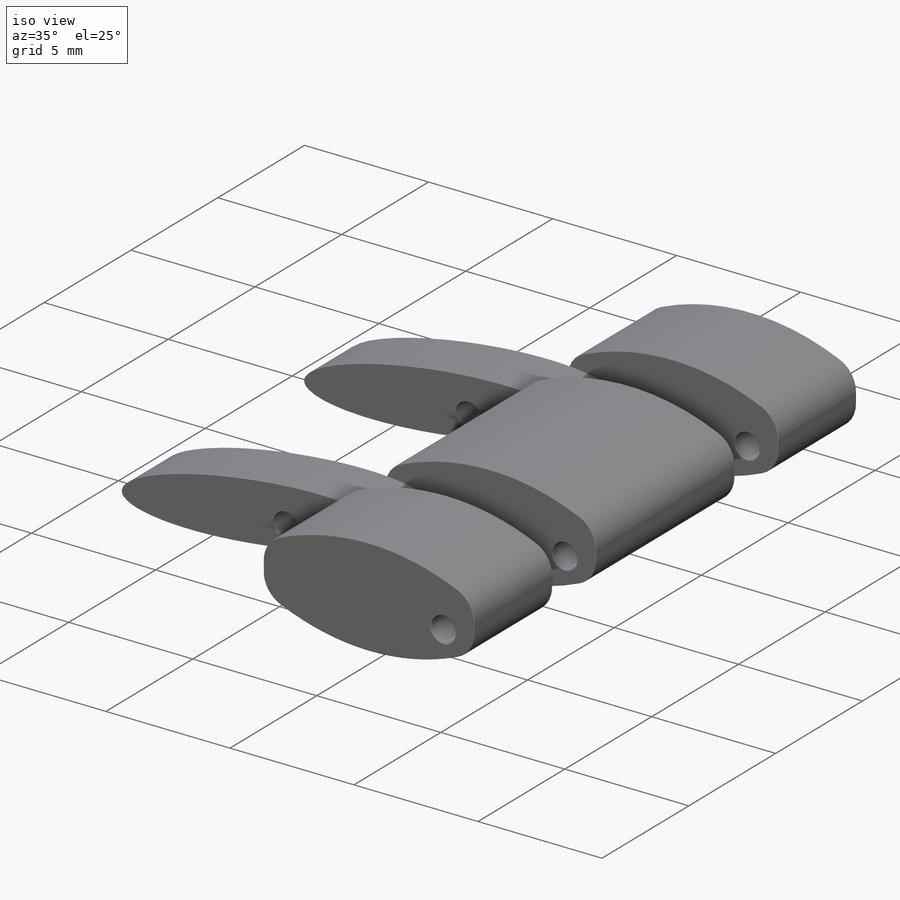
[diagram: iso view]
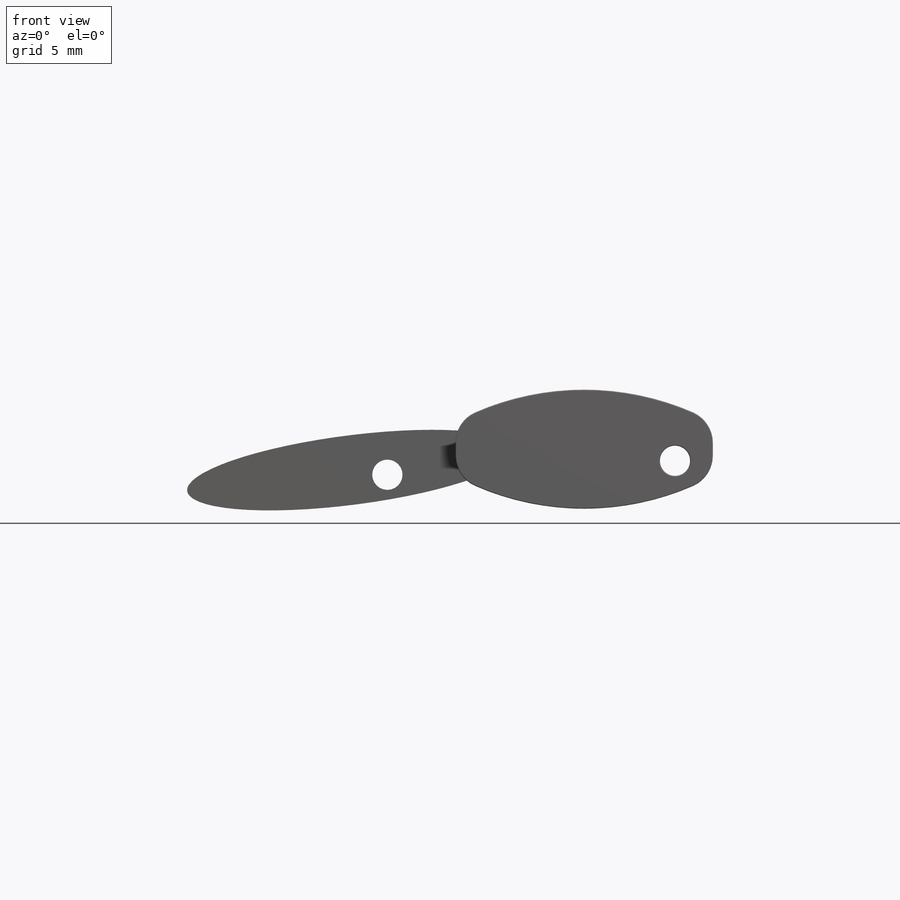
[diagram: front view]
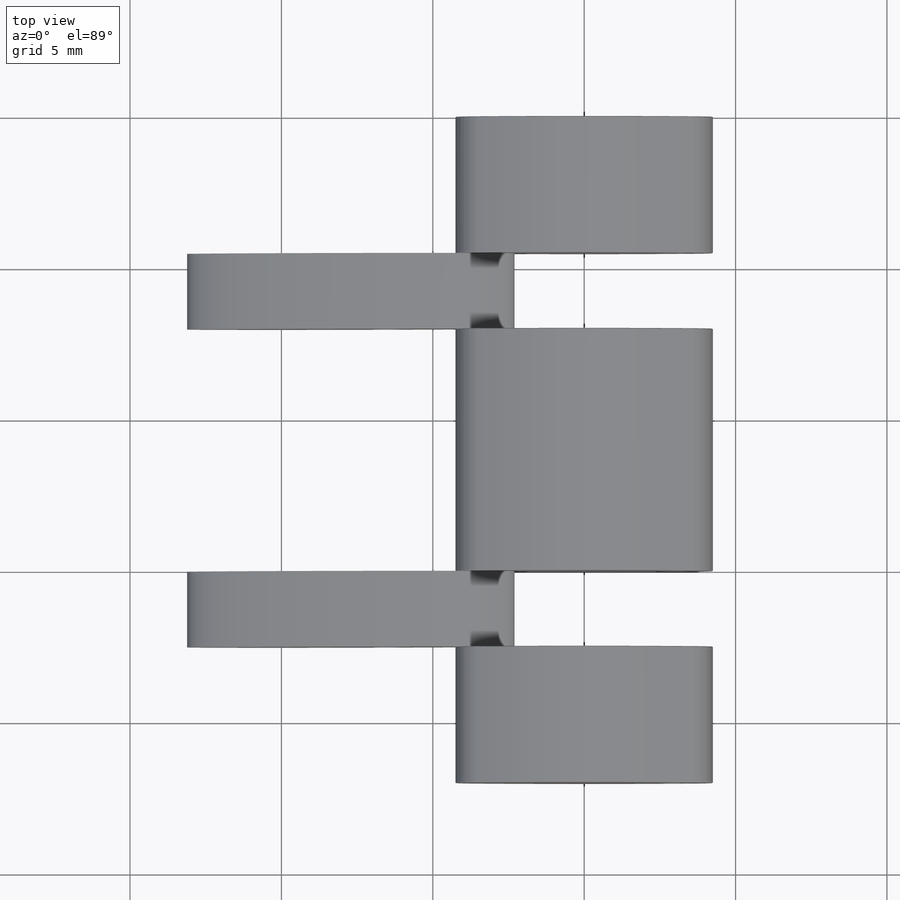
[diagram: top view]
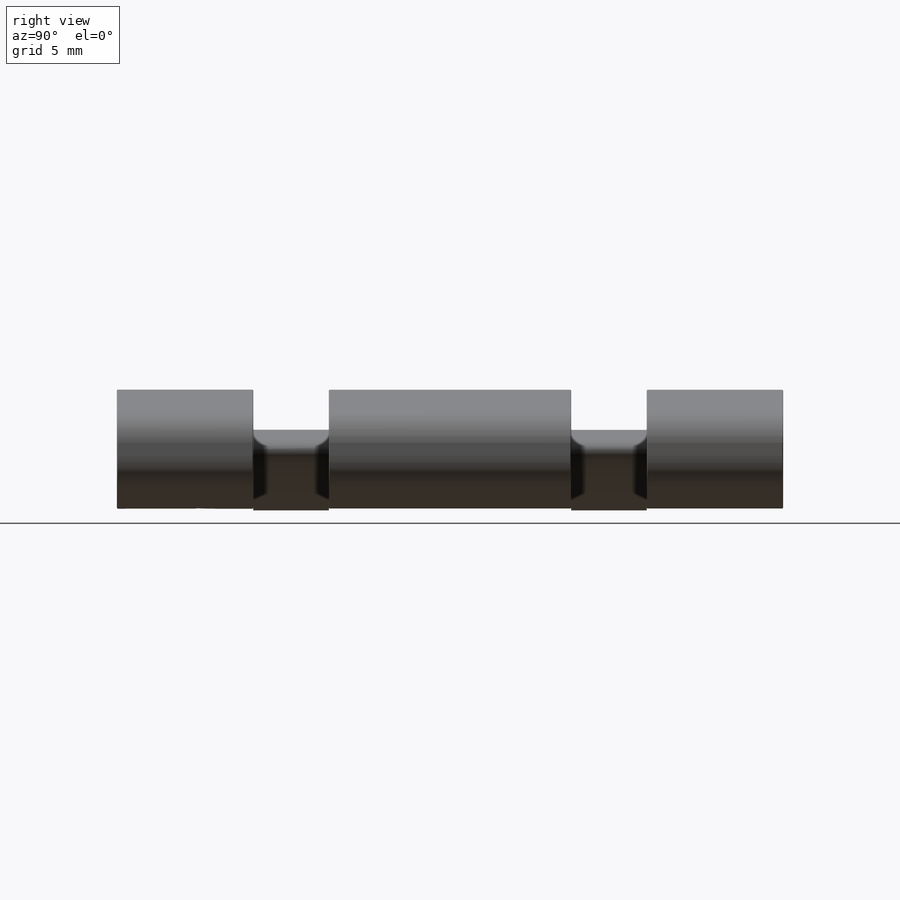
[diagram: right view]
SOLIDWORKS PART (.sldprt)
format: sldprt  version: not decoded by parser v0  size: 569,856 bytes
history: native  units: mm
features: sketch x8, fillet x7, cut_extrude x5, extrude x3, material x1 (+11 scaffold rows collapsed)
feature tree (35):
  scaffold x11  (default folders/planes/origin — collapsed)
  material  "Material <not specified>"
  sketch  "Sketch1"  dims[D9=9.0mm D10=9.0mm D1=8.5mm D2=4.0mm D3=2.0mm D4=4.25mm D5=1.1mm D6=1.1mm D7=1.1mm D8=1.1mm]
  extrude  "Boss-Extrude1"  Depth=22mm
  fillet  "Fillet1"  Radius=1.1mm
  sketch  "Sketch2"  dims[D2=1.0mm D1=3.0mm]
  cut_extrude  "Cut-Extrude1"  Depth=22mm
  sketch  "Sketch3"
  cut_extrude  "Cut-Extrude2"  Depth=2.5mm
  sketch  "Sketch4"
  cut_extrude  "Cut-Extrude3"  Depth=2.5mm
  sketch  "Sketch5"
  extrude  "Boss-Extrude3"  Depth=2.5mm
  extrude  "Boss-Extrude4"  [1 undecoded]
  sketch  "Sketch5<2>"  dims[D1=2.5mm D19=17.5mm]
  sketch  "Sketch6"  dims[c1.D1=1.0mm c1.D2=~18.745571mm c2.D2=6.5mm c2.D3=~7.069114mm]
  cut_extrude  "Cut-Extrude4"  Depth=22.5mm
  fillet  "Fillet2"  Radius=0.03mm
  fillet  "Fillet4"  Radius=0.03mm
  fillet  "Fillet5"  Radius=0.03mm
  fillet  "Fillet6"  Radius=0.03mm
  fillet  "Fillet7"  Radius=0.03mm
  sketch  "Sketch7"  dims[D1=0.4mm D2=0.2mm D3=1.5mm D4=0.25mm D5=0.25mm D6=0.65mm]
  cut_extrude  "Cut-Extrude5"  Depth=0.2mm
  fillet  "Fillet8"  Radius=0.02mm
decode coverage: 19 of 23 modeling features carry decoded parameters
note: ~ marks probable driven/reference dimensions
note: 1 parameter value undecoded
note: suppression state not decoded; provenance and decode notes live in map.json
